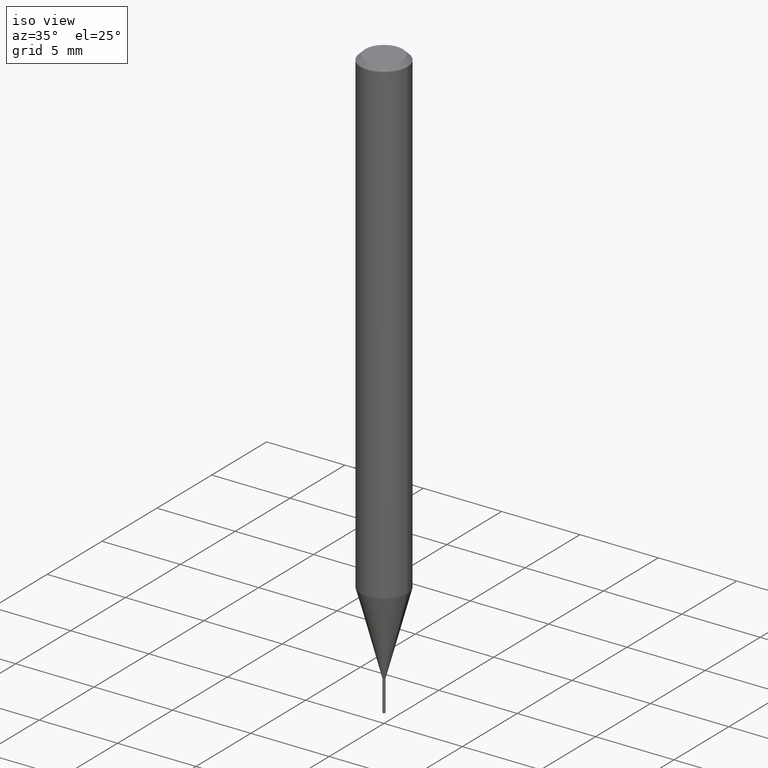
[diagram: clean part render]
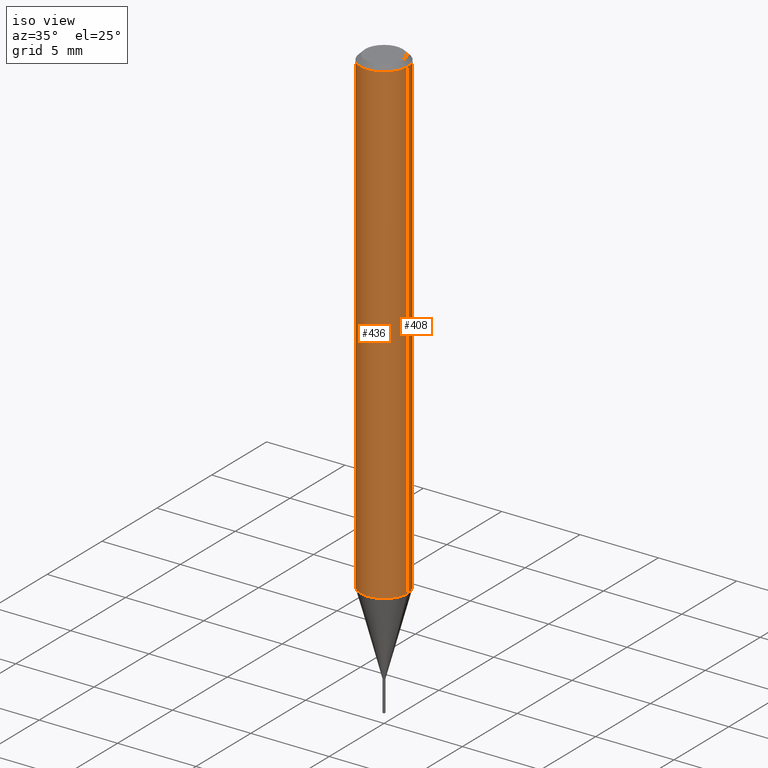
[diagram: same view with one multi-face feature highlighted, each face labeled with its STEP entity id]
A machine part, iso view. The highlighted faces form ONE feature: a constant-radius fillet chain: 2 tangent blend faces with common blend radius 1.4999 mm. The faces share edges in the B-rep.
Their STEP definitions:
[1] entity #436 (Cylinder):
#10 = VERTEX_POINT ( 'NONE', #406 ) ;
#26 = CARTESIAN_POINT ( 'NONE',  ( 2.953828850696113745E-29, -4.217284753032831464E-15, -1.207878359856899841 ) ) ;
#35 = ORIENTED_EDGE ( 'NONE', *, *, #167, .T. ) ;
#71 = CARTESIAN_POINT ( 'NONE',  ( 0.05905000000000006771, -4.123439461173745257E-16, 2.879382386107503723E-30 ) ) ;
#80 = EDGE_LOOP ( 'NONE', ( #207, #113, #35, #151 ) ) ;
#113 = ORIENTED_EDGE ( 'NONE', *, *, #487, .T. ) ;
#133 = DIRECTION ( 'NONE',  ( 1.000000000000000000, -6.982962677686263555E-15, 0.000000000000000000 ) ) ;
#151 = ORIENTED_EDGE ( 'NONE', *, *, #437, .F. ) ;
#153 = DIRECTION ( 'NONE',  ( -2.445468806185136877E-29, 3.491481338843145188E-15, 1.000000000000000000 ) ) ;
#167 = EDGE_CURVE ( 'NONE', #473, #399, #258, .T. ) ;
#207 = ORIENTED_EDGE ( 'NONE', *, *, #261, .F. ) ;
#208 = DIRECTION ( 'NONE',  ( -2.445468806185136597E-29, 3.491481338843145583E-15, 1.000000000000000000 ) ) ;
#211 = FACE_OUTER_BOUND ( 'NONE', #80, .T. ) ;
#237 = CARTESIAN_POINT ( 'NONE',  ( -0.05904999999999999832, -1.709684088355943920E-15, -0.01181000000000007044 ) ) ;
#258 = LINE ( 'NONE', #71, #467 ) ;
#261 = EDGE_CURVE ( 'NONE', #10, #324, #269, .T. ) ;
#263 = VECTOR ( 'NONE', #153, 39.37007874015748143 ) ;
#265 = AXIS2_PLACEMENT_3D ( 'NONE', #26, #396, #133 ) ;
#269 = LINE ( 'NONE', #419, #263 ) ;
#324 = VERTEX_POINT ( 'NONE', #237 ) ;
#325 = DIRECTION ( 'NONE',  ( 1.000000000000000000, -6.982962677686266711E-15, 0.000000000000000000 ) ) ;
#328 = AXIS2_PLACEMENT_3D ( 'NONE', #474, #208, #325 ) ;
#350 = CARTESIAN_POINT ( 'NONE',  ( 0.05904999999999999832, -4.535783407291118600E-16, -0.01181000000000007044 ) ) ;
#363 = CARTESIAN_POINT ( 'NONE',  ( 0.000000000000000000, 0.000000000000000000, 0.000000000000000000 ) ) ;
#365 = CYLINDRICAL_SURFACE ( 'NONE', #454, 0.05905000000000006771 ) ;
#396 = DIRECTION ( 'NONE',  ( -2.445468806185136597E-29, 3.491481338843145583E-15, 1.000000000000000000 ) ) ;
#399 = VERTEX_POINT ( 'NONE', #350 ) ;
#406 = CARTESIAN_POINT ( 'NONE',  ( -0.05905000000000014404, -3.797709267566491971E-15, -1.207878359856899841 ) ) ;
#419 = CARTESIAN_POINT ( 'NONE',  ( -0.05905000000000006771, 4.195754854663396409E-16, -2.904631170795525045E-30 ) ) ;
#436 = ADVANCED_FACE ( 'NONE', ( #211 ), #365, .T. ) ;
#437 = EDGE_CURVE ( 'NONE', #324, #399, #486, .T. ) ;
#438 = CARTESIAN_POINT ( 'NONE',  ( 0.05905000000000014404, -4.629628699150206384E-15, -1.207878359856899841 ) ) ;
#449 = DIRECTION ( 'NONE',  ( -2.445468806185136877E-29, 3.491481338843145188E-15, 1.000000000000000000 ) ) ;
#454 = AXIS2_PLACEMENT_3D ( 'NONE', #363, #479, #466 ) ;
#466 = DIRECTION ( 'NONE',  ( 1.000000000000000000, -6.982962677686266711E-15, 4.876176775795936353E-29 ) ) ;
#467 = VECTOR ( 'NONE', #449, 39.37007874015748143 ) ;
#473 = VERTEX_POINT ( 'NONE', #438 ) ;
#474 = CARTESIAN_POINT ( 'NONE',  ( 2.888098660104663766E-31, -4.123439461173779647E-17, -0.01181000000000007044 ) ) ;
#477 = CIRCLE ( 'NONE', #265, 0.05905000000000014404 ) ;
#479 = DIRECTION ( 'NONE',  ( -2.445468806185136597E-29, 3.491481338843145583E-15, 1.000000000000000000 ) ) ;
#486 = CIRCLE ( 'NONE', #328, 0.05904999999999999832 ) ;
#487 = EDGE_CURVE ( 'NONE', #10, #473, #477, .T. ) ;
[2] entity #408 (Cylinder):
#10 = VERTEX_POINT ( 'NONE', #406 ) ;
#17 = EDGE_CURVE ( 'NONE', #399, #324, #224, .T. ) ;
#41 = DIRECTION ( 'NONE',  ( -2.445468806185136597E-29, 3.491481338843145583E-15, 1.000000000000000000 ) ) ;
#50 = CYLINDRICAL_SURFACE ( 'NONE', #199, 0.05905000000000006771 ) ;
#71 = CARTESIAN_POINT ( 'NONE',  ( 0.05905000000000006771, -4.123439461173745257E-16, 2.879382386107503723E-30 ) ) ;
#76 = CARTESIAN_POINT ( 'NONE',  ( 2.953828850696113745E-29, -4.217284753032831464E-15, -1.207878359856899841 ) ) ;
#78 = ORIENTED_EDGE ( 'NONE', *, *, #161, .T. ) ;
#85 = DIRECTION ( 'NONE',  ( 1.000000000000000000, -6.982962677686266711E-15, 4.876176775795936353E-29 ) ) ;
#119 = FACE_OUTER_BOUND ( 'NONE', #174, .T. ) ;
#149 = DIRECTION ( 'NONE',  ( 1.000000000000000000, -6.982962677686263555E-15, 0.000000000000000000 ) ) ;
#153 = DIRECTION ( 'NONE',  ( -2.445468806185136877E-29, 3.491481338843145188E-15, 1.000000000000000000 ) ) ;
#161 = EDGE_CURVE ( 'NONE', #473, #10, #327, .T. ) ;
#167 = EDGE_CURVE ( 'NONE', #473, #399, #258, .T. ) ;
#174 = EDGE_LOOP ( 'NONE', ( #78, #434, #184, #253 ) ) ;
#184 = ORIENTED_EDGE ( 'NONE', *, *, #17, .F. ) ;
#199 = AXIS2_PLACEMENT_3D ( 'NONE', #353, #428, #85 ) ;
#224 = CIRCLE ( 'NONE', #461, 0.05904999999999999832 ) ;
#237 = CARTESIAN_POINT ( 'NONE',  ( -0.05904999999999999832, -1.709684088355943920E-15, -0.01181000000000007044 ) ) ;
#253 = ORIENTED_EDGE ( 'NONE', *, *, #167, .F. ) ;
#255 = DIRECTION ( 'NONE',  ( 1.000000000000000000, -6.982962677686266711E-15, 0.000000000000000000 ) ) ;
#258 = LINE ( 'NONE', #71, #467 ) ;
#261 = EDGE_CURVE ( 'NONE', #10, #324, #269, .T. ) ;
#263 = VECTOR ( 'NONE', #153, 39.37007874015748143 ) ;
#269 = LINE ( 'NONE', #419, #263 ) ;
#284 = CARTESIAN_POINT ( 'NONE',  ( 2.888098660104663766E-31, -4.123439461173779647E-17, -0.01181000000000007044 ) ) ;
#305 = AXIS2_PLACEMENT_3D ( 'NONE', #76, #41, #149 ) ;
#324 = VERTEX_POINT ( 'NONE', #237 ) ;
#327 = CIRCLE ( 'NONE', #305, 0.05905000000000014404 ) ;
#350 = CARTESIAN_POINT ( 'NONE',  ( 0.05904999999999999832, -4.535783407291118600E-16, -0.01181000000000007044 ) ) ;
#353 = CARTESIAN_POINT ( 'NONE',  ( 0.000000000000000000, 0.000000000000000000, 0.000000000000000000 ) ) ;
#362 = DIRECTION ( 'NONE',  ( -2.445468806185136597E-29, 3.491481338843145583E-15, 1.000000000000000000 ) ) ;
#399 = VERTEX_POINT ( 'NONE', #350 ) ;
#406 = CARTESIAN_POINT ( 'NONE',  ( -0.05905000000000014404, -3.797709267566491971E-15, -1.207878359856899841 ) ) ;
#408 = ADVANCED_FACE ( 'NONE', ( #119 ), #50, .T. ) ;
#419 = CARTESIAN_POINT ( 'NONE',  ( -0.05905000000000006771, 4.195754854663396409E-16, -2.904631170795525045E-30 ) ) ;
#428 = DIRECTION ( 'NONE',  ( -2.445468806185136597E-29, 3.491481338843145583E-15, 1.000000000000000000 ) ) ;
#434 = ORIENTED_EDGE ( 'NONE', *, *, #261, .T. ) ;
#438 = CARTESIAN_POINT ( 'NONE',  ( 0.05905000000000014404, -4.629628699150206384E-15, -1.207878359856899841 ) ) ;
#449 = DIRECTION ( 'NONE',  ( -2.445468806185136877E-29, 3.491481338843145188E-15, 1.000000000000000000 ) ) ;
#461 = AXIS2_PLACEMENT_3D ( 'NONE', #284, #362, #255 ) ;
#467 = VECTOR ( 'NONE', #449, 39.37007874015748143 ) ;
#473 = VERTEX_POINT ( 'NONE', #438 ) ;